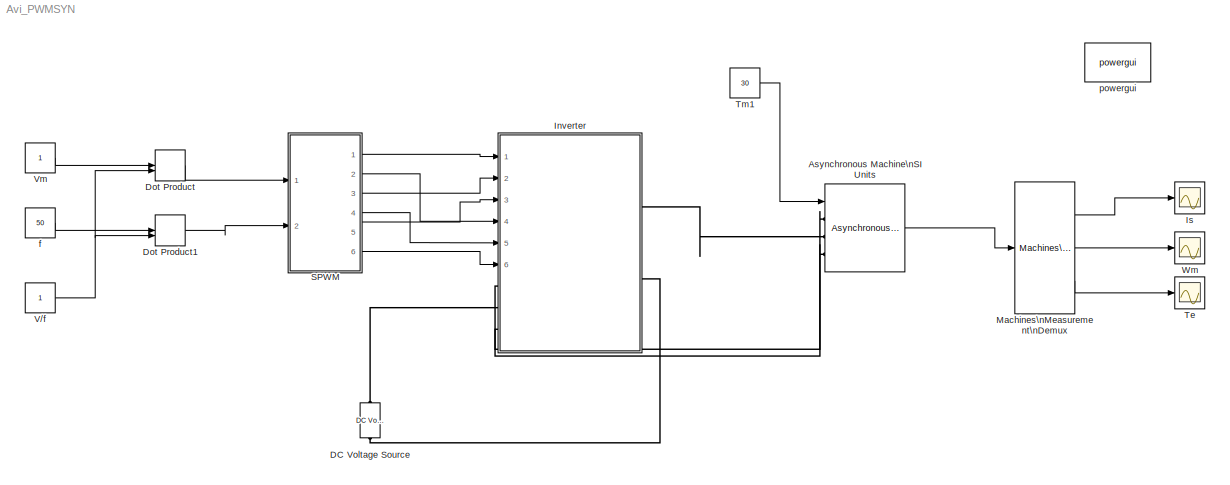
MODEL Avi_PWMSYN
KIND model
BLOCK [Reference] Asynchronous Machine\nSI Units  REF=powerlib/Machines/Asynchronous Machine\nSI Units
  AttributesFormatString = \\n
  DialogController = POWERSYS.PowerSysDialog
  FunctionWithSeparateData = off
  InitialConditions = [1 0 0 0 0 0 0 0]
  IterativeModel = Forward Euler
  Lm = .0631
  LoadFlowParameters = 1492000
  Mechanical = [ .089 0 2 ]
  MechanicalLoad = Torque Tm
  NominalParameters = [ 3746 220 50 ]
  PolePairs = 2
  Ports = [1, 1, 0, 0, 0, 3]
  PresetModel = No
  RTWMemSecDataConstants = Inherit from model
  RTWMemSecDataInternal = Inherit from model
  RTWMemSecDataParameters = Inherit from model
  RTWMemSecFuncExecute = Inherit from model
  RTWMemSecFuncInitTerm = Inherit from model
  ReferenceFrame = Stationary
  Rotor = [ .816 2e-3]
  RotorType = Squirrel-cage
  Saturation = [14.03593122, 27.81365428, 53.79336849, 72.68890987, 97.98006896, 148.6815601, 215.7428561, 302.9841135, 428.7778367 ; 230, 322, 414, 460, 506, 552, 598, 644, 690]
  ShowDetailedParameters = on
  ShowPortLabels = FromPortIcon
  SimulateSaturation = off
  SourceBlock = powerlib/Machines/Asynchronous Machine\nSI Units
  SourceType = Asynchronous Machine
  Stator = [.453 2e-3]
  SystemSampleTime = -1
  TsBlock = -1
  TsPowergui = 0
  Units = SI
BLOCK [Reference] DC Voltage Source  REF=powerlib/Electrical\nSources/DC Voltage Source
  Amplitude = 250
  DialogController = POWERSYS.PowerSysDialog
  FunctionWithSeparateData = off
  Measurements = None
  Ports = [0, 0, 0, 0, 0, 1, 1]
  RTWMemSecDataConstants = Inherit from model
  RTWMemSecDataInternal = Inherit from model
  RTWMemSecDataParameters = Inherit from model
  RTWMemSecFuncExecute = Inherit from model
  RTWMemSecFuncInitTerm = Inherit from model
  ShowPortLabels = FromPortIcon
  SourceBlock = powerlib/Electrical\nSources/DC Voltage Source
  SourceType = DC Voltage Source
  SystemSampleTime = -1
BLOCK [DotProduct] Dot Product
  OutDataType = fixdt(1, 16)
  OutDataTypeStr = Inherit: Inherit via internal rule
  OutScaling = 2^-10
  OutputDataTypeScalingMode = Inherit via internal rule
BLOCK [DotProduct] Dot Product1
  OutDataType = fixdt(1, 16)
  OutDataTypeStr = Inherit: Inherit via internal rule
  OutScaling = 2^-10
  OutputDataTypeScalingMode = Inherit via internal rule
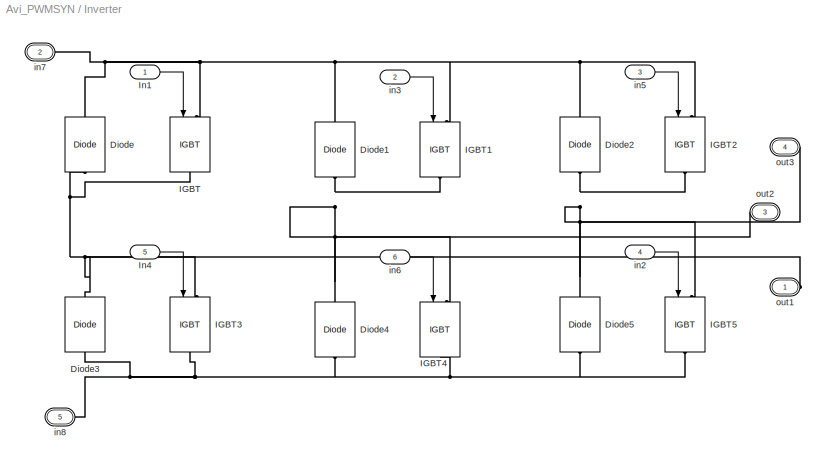
BLOCK [SubSystem] Inverter
  FunctionWithSeparateData = off
  MaskHideContents = off
  MinAlgLoopOccurrences = off
  Opaque = off
  Ports = [6, 0, 0, 0, 0, 3, 2]
  PropExecContextOutsideSubsystem = off
  RTWSystemCode = Auto
  RequestExecContextInheritance = off
BLOCK [Reference] Inverter/Diode  REF=powerlib/Power\nElectronics/Diode
  Cs = 250e-9
  DialogController = POWERSYS.PowerSysDialog
  FunctionWithSeparateData = off
  IC = 0
  Lon = 0
  Measurements = off
  Ports = [0, 0, 0, 0, 0, 1, 1]
  RTWMemSecDataConstants = Inherit from model
  RTWMemSecDataInternal = Inherit from model
  RTWMemSecDataParameters = Inherit from model
  RTWMemSecFuncExecute = Inherit from model
  RTWMemSecFuncInitTerm = Inherit from model
  Ron = 0.001
  Rs = 500
  ShowPortLabels = FromPortIcon
  SourceBlock = powerlib/Power\nElectronics/Diode
  SourceType = Diode
  SystemSampleTime = -1
  UseSnubber = off
  Vf = 0.8
BLOCK [Reference] Inverter/Diode1  REF=powerlib/Power\nElectronics/Diode
  Cs = 250e-9
  DialogController = POWERSYS.PowerSysDialog
  FunctionWithSeparateData = off
  IC = 0
  Lon = 0
  Measurements = off
  Ports = [0, 0, 0, 0, 0, 1, 1]
  RTWMemSecDataConstants = Inherit from model
  RTWMemSecDataInternal = Inherit from model
  RTWMemSecDataParameters = Inherit from model
  RTWMemSecFuncExecute = Inherit from model
  RTWMemSecFuncInitTerm = Inherit from model
  Ron = 0.001
  Rs = 500
  ShowPortLabels = FromPortIcon
  SourceBlock = powerlib/Power\nElectronics/Diode
  SourceType = Diode
  SystemSampleTime = -1
  UseSnubber = off
  Vf = 0.8
BLOCK [Reference] Inverter/Diode2  REF=powerlib/Power\nElectronics/Diode
  Cs = 250e-9
  DialogController = POWERSYS.PowerSysDialog
  FunctionWithSeparateData = off
  IC = 0
  Lon = 0
  Measurements = off
  Ports = [0, 0, 0, 0, 0, 1, 1]
  RTWMemSecDataConstants = Inherit from model
  RTWMemSecDataInternal = Inherit from model
  RTWMemSecDataParameters = Inherit from model
  RTWMemSecFuncExecute = Inherit from model
  RTWMemSecFuncInitTerm = Inherit from model
  Ron = 0.001
  Rs = 500
  ShowPortLabels = FromPortIcon
  SourceBlock = powerlib/Power\nElectronics/Diode
  SourceType = Diode
  SystemSampleTime = -1
  UseSnubber = off
  Vf = 0.8
BLOCK [Reference] Inverter/Diode3  REF=powerlib/Power\nElectronics/Diode
  Cs = 250e-9
  DialogController = POWERSYS.PowerSysDialog
  FunctionWithSeparateData = off
  IC = 0
  Lon = 0
  Measurements = off
  Ports = [0, 0, 0, 0, 0, 1, 1]
  RTWMemSecDataConstants = Inherit from model
  RTWMemSecDataInternal = Inherit from model
  RTWMemSecDataParameters = Inherit from model
  RTWMemSecFuncExecute = Inherit from model
  RTWMemSecFuncInitTerm = Inherit from model
  Ron = 0.001
  Rs = 500
  ShowPortLabels = FromPortIcon
  SourceBlock = powerlib/Power\nElectronics/Diode
  SourceType = Diode
  SystemSampleTime = -1
  UseSnubber = off
  Vf = 0.8
BLOCK [Reference] Inverter/Diode4  REF=powerlib/Power\nElectronics/Diode
  Cs = 250e-9
  DialogController = POWERSYS.PowerSysDialog
  FunctionWithSeparateData = off
  IC = 0
  Lon = 0
  Measurements = off
  Ports = [0, 0, 0, 0, 0, 1, 1]
  RTWMemSecDataConstants = Inherit from model
  RTWMemSecDataInternal = Inherit from model
  RTWMemSecDataParameters = Inherit from model
  RTWMemSecFuncExecute = Inherit from model
  RTWMemSecFuncInitTerm = Inherit from model
  Ron = 0.001
  Rs = 500
  ShowPortLabels = FromPortIcon
  SourceBlock = powerlib/Power\nElectronics/Diode
  SourceType = Diode
  SystemSampleTime = -1
  UseSnubber = off
  Vf = 0.8
BLOCK [Reference] Inverter/Diode5  REF=powerlib/Power\nElectronics/Diode
  Cs = 250e-9
  DialogController = POWERSYS.PowerSysDialog
  FunctionWithSeparateData = off
  IC = 0
  Lon = 0
  Measurements = off
  Ports = [0, 0, 0, 0, 0, 1, 1]
  RTWMemSecDataConstants = Inherit from model
  RTWMemSecDataInternal = Inherit from model
  RTWMemSecDataParameters = Inherit from model
  RTWMemSecFuncExecute = Inherit from model
  RTWMemSecFuncInitTerm = Inherit from model
  Ron = 0.001
  Rs = 500
  ShowPortLabels = FromPortIcon
  SourceBlock = powerlib/Power\nElectronics/Diode
  SourceType = Diode
  SystemSampleTime = -1
  UseSnubber = off
  Vf = 0.8
BLOCK [Reference] Inverter/IGBT  REF=powerlib/Power\nElectronics/IGBT
  Cs = inf
  DialogController = POWERSYS.PowerSysDialog
  FunctionWithSeparateData = off
  IC = 0
  Lon = 0
  Measurements = off
  Ports = [1, 0, 0, 0, 0, 1, 1]
  RTWMemSecDataConstants = Inherit from model
  RTWMemSecDataInternal = Inherit from model
  RTWMemSecDataParameters = Inherit from model
  RTWMemSecFuncExecute = Inherit from model
  RTWMemSecFuncInitTerm = Inherit from model
  Ron = 0.001
  Rs = 1e5
  ShowPortLabels = FromPortIcon
  SourceBlock = powerlib/Power\nElectronics/IGBT
  SourceType = IGBT
  SystemSampleTime = -1
  Tf = 1e-6
  Tt = 2e-6
  Vf = 1
BLOCK [Reference] Inverter/IGBT1  REF=powerlib/Power\nElectronics/IGBT
  Cs = inf
  DialogController = POWERSYS.PowerSysDialog
  FunctionWithSeparateData = off
  IC = 0
  Lon = 0
  Measurements = off
  Ports = [1, 0, 0, 0, 0, 1, 1]
  RTWMemSecDataConstants = Inherit from model
  RTWMemSecDataInternal = Inherit from model
  RTWMemSecDataParameters = Inherit from model
  RTWMemSecFuncExecute = Inherit from model
  RTWMemSecFuncInitTerm = Inherit from model
  Ron = 0.001
  Rs = 1e5
  ShowPortLabels = FromPortIcon
  SourceBlock = powerlib/Power\nElectronics/IGBT
  SourceType = IGBT
  SystemSampleTime = -1
  Tf = 1e-6
  Tt = 2e-6
  Vf = 1
BLOCK [Reference] Inverter/IGBT2  REF=powerlib/Power\nElectronics/IGBT
  Cs = inf
  DialogController = POWERSYS.PowerSysDialog
  FunctionWithSeparateData = off
  IC = 0
  Lon = 0
  Measurements = off
  Ports = [1, 0, 0, 0, 0, 1, 1]
  RTWMemSecDataConstants = Inherit from model
  RTWMemSecDataInternal = Inherit from model
  RTWMemSecDataParameters = Inherit from model
  RTWMemSecFuncExecute = Inherit from model
  RTWMemSecFuncInitTerm = Inherit from model
  Ron = 0.001
  Rs = 1e5
  ShowPortLabels = FromPortIcon
  SourceBlock = powerlib/Power\nElectronics/IGBT
  SourceType = IGBT
  SystemSampleTime = -1
  Tf = 1e-6
  Tt = 2e-6
  Vf = 1
BLOCK [Reference] Inverter/IGBT3  REF=powerlib/Power\nElectronics/IGBT
  Cs = inf
  DialogController = POWERSYS.PowerSysDialog
  FunctionWithSeparateData = off
  IC = 0
  Lon = 0
  Measurements = off
  Ports = [1, 0, 0, 0, 0, 1, 1]
  RTWMemSecDataConstants = Inherit from model
  RTWMemSecDataInternal = Inherit from model
  RTWMemSecDataParameters = Inherit from model
  RTWMemSecFuncExecute = Inherit from model
  RTWMemSecFuncInitTerm = Inherit from model
  Ron = 0.001
  Rs = 1e5
  ShowPortLabels = FromPortIcon
  SourceBlock = powerlib/Power\nElectronics/IGBT
  SourceType = IGBT
  SystemSampleTime = -1
  Tf = 1e-6
  Tt = 2e-6
  Vf = 1
BLOCK [Reference] Inverter/IGBT4  REF=powerlib/Power\nElectronics/IGBT
  Cs = inf
  DialogController = POWERSYS.PowerSysDialog
  FunctionWithSeparateData = off
  IC = 0
  Lon = 0
  Measurements = off
  Ports = [1, 0, 0, 0, 0, 1, 1]
  RTWMemSecDataConstants = Inherit from model
  RTWMemSecDataInternal = Inherit from model
  RTWMemSecDataParameters = Inherit from model
  RTWMemSecFuncExecute = Inherit from model
  RTWMemSecFuncInitTerm = Inherit from model
  Ron = 0.001
  Rs = 1e5
  ShowPortLabels = FromPortIcon
  SourceBlock = powerlib/Power\nElectronics/IGBT
  SourceType = IGBT
  SystemSampleTime = -1
  Tf = 1e-6
  Tt = 2e-6
  Vf = 1
BLOCK [Reference] Inverter/IGBT5  REF=powerlib/Power\nElectronics/IGBT
  Cs = inf
  DialogController = POWERSYS.PowerSysDialog
  FunctionWithSeparateData = off
  IC = 0
  Lon = 0
  Measurements = off
  Ports = [1, 0, 0, 0, 0, 1, 1]
  RTWMemSecDataConstants = Inherit from model
  RTWMemSecDataInternal = Inherit from model
  RTWMemSecDataParameters = Inherit from model
  RTWMemSecFuncExecute = Inherit from model
  RTWMemSecFuncInitTerm = Inherit from model
  Ron = 0.001
  Rs = 1e5
  ShowPortLabels = FromPortIcon
  SourceBlock = powerlib/Power\nElectronics/IGBT
  SourceType = IGBT
  SystemSampleTime = -1
  Tf = 1e-6
  Tt = 2e-6
  Vf = 1
BLOCK [Inport] Inverter/In1
  IconDisplay = Port number
  OutDataType = fixdt(1, 16)
  OutScaling = 2^0
BLOCK [Inport] Inverter/In4
  IconDisplay = Port number
  OutDataType = fixdt(1, 16)
  OutScaling = 2^0
  Port = 5
BLOCK [Inport] Inverter/in2
  IconDisplay = Port number
  OutDataType = fixdt(1, 16)
  OutScaling = 2^0
  Port = 4
BLOCK [Inport] Inverter/in3
  IconDisplay = Port number
  OutDataType = fixdt(1, 16)
  OutScaling = 2^0
  Port = 2
BLOCK [Inport] Inverter/in5
  IconDisplay = Port number
  OutDataType = fixdt(1, 16)
  OutScaling = 2^0
  Port = 3
BLOCK [Inport] Inverter/in6
  IconDisplay = Port number
  OutDataType = fixdt(1, 16)
  OutScaling = 2^0
  Port = 6
BLOCK [PMIOPort] Inverter/in7
  Port = 2
  Side = Left
  Tag = PMCPort
BLOCK [PMIOPort] Inverter/in8
  Port = 5
  Side = Right
  Tag = PMCPort
BLOCK [PMIOPort] Inverter/out1
  Port = 1
  Side = Left
  Tag = PMCPort
BLOCK [PMIOPort] Inverter/out2
  Port = 3
  Side = Right
  Tag = PMCPort
BLOCK [PMIOPort] Inverter/out3
  Port = 4
  Side = Left
  Tag = PMCPort
BLOCK [Scope] Is
  DataFormat = StructureWithTime
  Floating = off
  NumInputPorts = 1
  Ports = [1]
  SampleTime = 0
  SaveName = ScopeData4
  YMax = 40
  YMin = -40
BLOCK [Reference] Machines\nMeasurement\nDemux  REF=powerlib/Machines/Machines\nMeasurement\nDemux
  DialogController = POWERSYS.PowerSysDialog
  FunctionWithSeparateData = off
  Ports = [1, 3]
  RTWMemSecDataConstants = Inherit from model
  RTWMemSecDataInternal = Inherit from model
  RTWMemSecDataParameters = Inherit from model
  RTWMemSecFuncExecute = Inherit from model
  RTWMemSecFuncInitTerm = Inherit from model
  ShowPortLabels = FromPortIcon
  SourceBlock = powerlib/Machines/Machines\nMeasurement\nDemux
  SourceType = Machine measurements
  SystemSampleTime = -1
  asm1 = off
  asm10 = on
  asm11 = off
  asm2 = off
  asm3 = off
  asm4 = off
  asm5 = on
  asm6 = off
  asm7 = off
  asm8 = off
  asm9 = on
  lastType = 1
  machType = Asynchronous
  pmsm1 = on
  pmsm2 = on
  pmsm3 = on
  pmsm4 = off
  pmsm5 = on
  pmsm6 = on
  pmsm7 = on
  sm1 = on
  sm10 = off
  sm11 = off
  sm115 = on
  sm12 = off
  sm13 = off
  sm14 = off
  sm2 = off
  sm3 = off
  sm4 = off
  sm5 = off
  sm6 = off
  sm7 = off
  sm8 = on
  sm9 = off
  ssm1 = on
  ssm2 = on
  ssm3 = on
  ssm4 = on
  ssm5 = on
  ssm6 = on
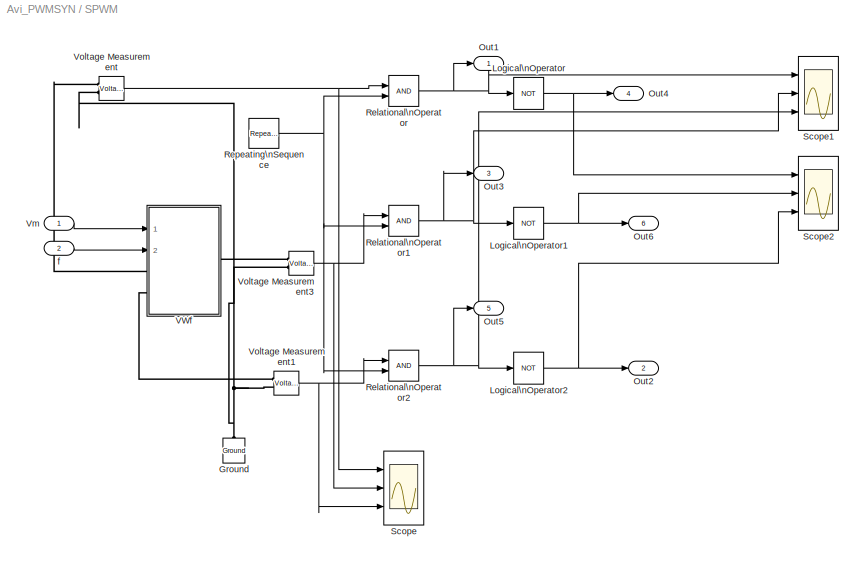
BLOCK [SubSystem] SPWM
  FunctionWithSeparateData = off
  MaskHideContents = off
  MinAlgLoopOccurrences = off
  Opaque = off
  Ports = [2, 6]
  PropExecContextOutsideSubsystem = off
  RTWSystemCode = Auto
  RequestExecContextInheritance = off
BLOCK [Reference] SPWM/Ground  REF=powerlib/Elements/Ground
  DialogController = POWERSYS.PowerSysDialog
  LConnTagsString = a
  LeftPortType = p1
  PhysicalDomain = powersysdomain
  Ports = [0, 0, 0, 0, 0, 1]
  RightPortType = p1
  SourceBlock = powerlib/Elements/Ground
  SourceType = Ground
  SubClassName = unknown
BLOCK [Logic] SPWM/Logical\nOperator
  AllPortsSameDT = off
  LogicDataType = fixdt(0, 8)
  Operator = NOT
  OutDataTypeMode = boolean
  OutDataTypeStr = boolean
  Ports = [1, 1]
BLOCK [Logic] SPWM/Logical\nOperator1
  AllPortsSameDT = off
  LogicDataType = fixdt(0, 8)
  Operator = NOT
  OutDataTypeMode = boolean
  OutDataTypeStr = boolean
  Ports = [1, 1]
BLOCK [Logic] SPWM/Logical\nOperator2
  AllPortsSameDT = off
  LogicDataType = fixdt(0, 8)
  Operator = NOT
  OutDataTypeMode = boolean
  OutDataTypeStr = boolean
  Ports = [1, 1]
BLOCK [Outport] SPWM/Out1
  IconDisplay = Port number
  OutDataType = fixdt(1, 16)
  OutScaling = 2^0
BLOCK [Outport] SPWM/Out2
  IconDisplay = Port number
  OutDataType = fixdt(1, 16)
  OutScaling = 2^0
  Port = 2
BLOCK [Outport] SPWM/Out3
  IconDisplay = Port number
  OutDataType = fixdt(1, 16)
  OutScaling = 2^0
  Port = 3
BLOCK [Outport] SPWM/Out4
  IconDisplay = Port number
  OutDataType = fixdt(1, 16)
  OutScaling = 2^0
  Port = 4
BLOCK [Outport] SPWM/Out5
  IconDisplay = Port number
  OutDataType = fixdt(1, 16)
  OutScaling = 2^0
  Port = 5
BLOCK [Outport] SPWM/Out6
  IconDisplay = Port number
  OutDataType = fixdt(1, 16)
  OutScaling = 2^0
  Port = 6
BLOCK [RelationalOperator] SPWM/Relational\nOperator
  InputSameDT = off
  LogicDataType = fixdt(0, 8)
  LogicOutDataTypeMode = boolean
  OutDataTypeStr = boolean
BLOCK [RelationalOperator] SPWM/Relational\nOperator1
  InputSameDT = off
  LogicDataType = fixdt(0, 8)
  LogicOutDataTypeMode = boolean
  OutDataTypeStr = boolean
BLOCK [RelationalOperator] SPWM/Relational\nOperator2
  InputSameDT = off
  LogicDataType = fixdt(0, 8)
  LogicOutDataTypeMode = boolean
  OutDataTypeStr = boolean
BLOCK [Reference] SPWM/Repeating\nSequence  REF=simulink/Sources/Repeating\nSequence
  FunctionWithSeparateData = off
  Ports = [0, 1]
  RTWMemSecDataConstants = Inherit from model
  RTWMemSecDataInternal = Inherit from model
  RTWMemSecDataParameters = Inherit from model
  RTWMemSecFuncExecute = Inherit from model
  RTWMemSecFuncInitTerm = Inherit from model
  ShowPortLabels = FromPortIcon
  SourceBlock = simulink/Sources/Repeating\nSequence
  SourceType = Repeating table
  SystemSampleTime = -1
  rep_seq_t = [0 .0005 .0015 .002]
  rep_seq_y = [0 1 -1 0]
BLOCK [Scope] SPWM/Scope
  DataFormat = StructureWithTime
  Floating = off
  LimitDataPoints = off
  NumInputPorts = 3
  Ports = [3]
  SampleTime = 0
  SaveName = ScopeData1
  YMax = 5~5~5
  YMin = -5~-5~-5
BLOCK [Scope] SPWM/Scope1
  DataFormat = StructureWithTime
  Floating = off
  LimitDataPoints = off
  NumInputPorts = 3
  Ports = [3]
  SampleTime = 0
  SaveName = ScopeData2
  YMax = 5~5~5
  YMin = -5~-5~-5
BLOCK [Scope] SPWM/Scope2
  DataFormat = StructureWithTime
  Floating = off
  LimitDataPoints = off
  NumInputPorts = 3
  Ports = [3]
  SampleTime = 0
  SaveName = ScopeData3
  YMax = 5~5~5
  YMin = -5~-5~-5
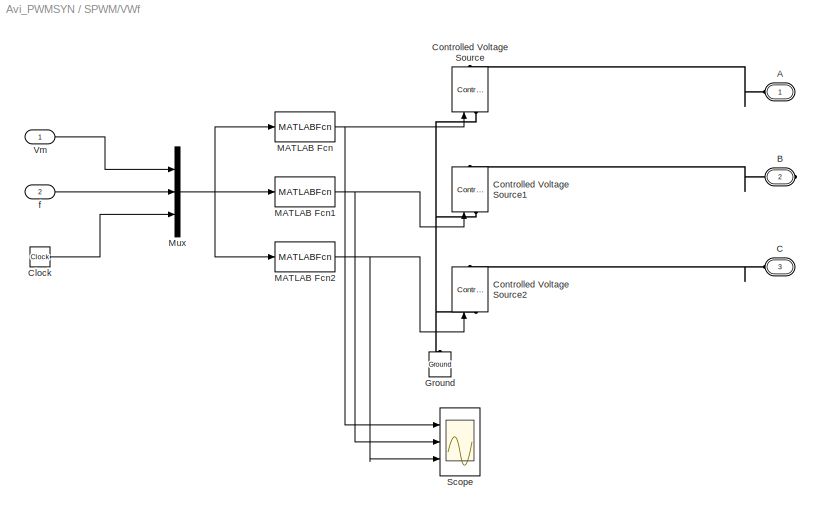
BLOCK [SubSystem] SPWM/VWf
  FunctionWithSeparateData = off
  MaskHideContents = off
  MinAlgLoopOccurrences = off
  Opaque = off
  Ports = [2, 0, 0, 0, 0, 2, 1]
  PropExecContextOutsideSubsystem = off
  RTWSystemCode = Auto
  RequestExecContextInheritance = off
BLOCK [PMIOPort] SPWM/VWf/A
  Port = 1
  Side = Left
  Tag = PMCPort
BLOCK [PMIOPort] SPWM/VWf/B
  Port = 2
  Side = Right
  Tag = PMCPort
BLOCK [PMIOPort] SPWM/VWf/C
  Port = 3
  Side = Left
  Tag = PMCPort
BLOCK [Clock] SPWM/VWf/Clock
  Decimation = 10
BLOCK [Reference] SPWM/VWf/Controlled Voltage Source  REF=powerlib/Electrical\nSources/Controlled Voltage Source
  Amplitude = 0
  DialogController = POWERSYS.PowerSysDialog
  Frequency = 0
  FunctionWithSeparateData = off
  Initialize = on
  Measurements = None
  Phase = 0
  Ports = [1, 0, 0, 0, 0, 1, 1]
  RTWMemSecDataConstants = Inherit from model
  RTWMemSecDataInternal = Inherit from model
  RTWMemSecDataParameters = Inherit from model
  RTWMemSecFuncExecute = Inherit from model
  RTWMemSecFuncInitTerm = Inherit from model
  ShowPortLabels = FromPortIcon
  SourceBlock = powerlib/Electrical\nSources/Controlled Voltage Source
  SourceType = Controlled Voltage Source
  Source_Type = AC
  SystemSampleTime = -1
BLOCK [Reference] SPWM/VWf/Controlled Voltage Source1  REF=powerlib/Electrical\nSources/Controlled Voltage Source
  Amplitude = 0
  DialogController = POWERSYS.PowerSysDialog
  Frequency = 0
  FunctionWithSeparateData = off
  Initialize = on
  Measurements = None
  Phase = 0
  Ports = [1, 0, 0, 0, 0, 1, 1]
  RTWMemSecDataConstants = Inherit from model
  RTWMemSecDataInternal = Inherit from model
  RTWMemSecDataParameters = Inherit from model
  RTWMemSecFuncExecute = Inherit from model
  RTWMemSecFuncInitTerm = Inherit from model
  ShowPortLabels = FromPortIcon
  SourceBlock = powerlib/Electrical\nSources/Controlled Voltage Source
  SourceType = Controlled Voltage Source
  Source_Type = AC
  SystemSampleTime = -1
BLOCK [Reference] SPWM/VWf/Controlled Voltage Source2  REF=powerlib/Electrical\nSources/Controlled Voltage Source
  Amplitude = 0
  DialogController = POWERSYS.PowerSysDialog
  Frequency = 0
  FunctionWithSeparateData = off
  Initialize = on
  Measurements = None
  Phase = 0
  Ports = [1, 0, 0, 0, 0, 1, 1]
  RTWMemSecDataConstants = Inherit from model
  RTWMemSecDataInternal = Inherit from model
  RTWMemSecDataParameters = Inherit from model
  RTWMemSecFuncExecute = Inherit from model
  RTWMemSecFuncInitTerm = Inherit from model
  ShowPortLabels = FromPortIcon
  SourceBlock = powerlib/Electrical\nSources/Controlled Voltage Source
  SourceType = Controlled Voltage Source
  Source_Type = AC
  SystemSampleTime = -1
BLOCK [Reference] SPWM/VWf/Ground  REF=powerlib/Elements/Ground
  DialogController = POWERSYS.PowerSysDialog
  LConnTagsString = a
  LeftPortType = p1
  PhysicalDomain = powersysdomain
  Ports = [0, 0, 0, 0, 0, 1]
  RightPortType = p1
  SourceBlock = powerlib/Elements/Ground
  SourceType = Ground
  SubClassName = unknown
BLOCK [MATLABFcn] SPWM/VWf/MATLAB Fcn
  MATLABFcn = u(1)*sin(6.28*u(2)*u(3))
  Ports = [1, 1]
BLOCK [MATLABFcn] SPWM/VWf/MATLAB Fcn1
  MATLABFcn = u(1)*sin((6.28*u(2)*u(3))-2.094)
  Ports = [1, 1]
BLOCK [MATLABFcn] SPWM/VWf/MATLAB Fcn2
  MATLABFcn = u(1)*sin((6.28*u(2)*u(3))+2.094)
  Ports = [1, 1]
BLOCK [Mux] SPWM/VWf/Mux
  DisplayOption = bar
  Inputs = 3
  Ports = [3, 1]
BLOCK [Scope] SPWM/VWf/Scope
  DataFormat = StructureWithTime
  Floating = off
  LimitDataPoints = off
  NumInputPorts = 3
  Ports = [3]
  SampleTime = 0
  TimeRange = 0.25
  YMax = 5~5~5
  YMin = -5~-5~-5
BLOCK [Inport] SPWM/VWf/Vm
  IconDisplay = Port number
  OutDataType = fixdt(1, 16)
  OutScaling = 2^0
BLOCK [Inport] SPWM/VWf/f
  IconDisplay = Port number
  OutDataType = fixdt(1, 16)
  OutScaling = 2^0
  Port = 2
BLOCK [Inport] SPWM/Vm
  IconDisplay = Port number
  OutDataType = fixdt(1, 16)
  OutScaling = 2^0
BLOCK [Reference] SPWM/Voltage Measurement  REF=powerlib/Measurements/Voltage Measurement
  DialogController = POWERSYS.PowerSysDialog
  FunctionWithSeparateData = off
  OutputType = Complex
  PSBequivalent = 0
  PhasorSimulation = off
  Ports = [0, 1, 0, 0, 0, 2]
  RTWMemSecDataConstants = Inherit from model
  RTWMemSecDataInternal = Inherit from model
  RTWMemSecDataParameters = Inherit from model
  RTWMemSecFuncExecute = Inherit from model
  RTWMemSecFuncInitTerm = Inherit from model
  ShowPortLabels = FromPortIcon
  SourceBlock = powerlib/Measurements/Voltage Measurement
  SourceType = Voltage Measurement
  SystemSampleTime = -1
BLOCK [Reference] SPWM/Voltage Measurement1  REF=powerlib/Measurements/Voltage Measurement
  DialogController = POWERSYS.PowerSysDialog
  FunctionWithSeparateData = off
  OutputType = Complex
  PSBequivalent = 0
  PhasorSimulation = off
  Ports = [0, 1, 0, 0, 0, 2]
  RTWMemSecDataConstants = Inherit from model
  RTWMemSecDataInternal = Inherit from model
  RTWMemSecDataParameters = Inherit from model
  RTWMemSecFuncExecute = Inherit from model
  RTWMemSecFuncInitTerm = Inherit from model
  ShowPortLabels = FromPortIcon
  SourceBlock = powerlib/Measurements/Voltage Measurement
  SourceType = Voltage Measurement
  SystemSampleTime = -1
BLOCK [Reference] SPWM/Voltage Measurement3  REF=powerlib/Measurements/Voltage Measurement
  DialogController = POWERSYS.PowerSysDialog
  FunctionWithSeparateData = off
  OutputType = Complex
  PSBequivalent = 0
  PhasorSimulation = off
  Ports = [0, 1, 0, 0, 0, 2]
  RTWMemSecDataConstants = Inherit from model
  RTWMemSecDataInternal = Inherit from model
  RTWMemSecDataParameters = Inherit from model
  RTWMemSecFuncExecute = Inherit from model
  RTWMemSecFuncInitTerm = Inherit from model
  ShowPortLabels = FromPortIcon
  SourceBlock = powerlib/Measurements/Voltage Measurement
  SourceType = Voltage Measurement
  SystemSampleTime = -1
BLOCK [Inport] SPWM/f
  IconDisplay = Port number
  OutDataType = fixdt(1, 16)
  OutScaling = 2^0
  Port = 2
BLOCK [Scope] Te
  DataFormat = StructureWithTime
  Floating = off
  NumInputPorts = 1
  Ports = [1]
  SampleTime = 0
  SaveName = ScopeData6
  YMax = 100
  YMin = 10
BLOCK [Constant] Tm1
  OutDataType = fixdt(1, 16)
  OutScaling = 2^0
  Value = 30
BLOCK [Constant] V//f
  OutDataType = fixdt(1, 16)
  OutScaling = 2^0
BLOCK [Constant] Vm
  OutDataType = fixdt(1, 16)
  OutScaling = 2^0
BLOCK [Scope] Wm
  DataFormat = StructureWithTime
  Floating = off
  NumInputPorts = 1
  Ports = [1]
  SampleTime = 0
  SaveName = ScopeData5
  YMax = 20
  YMin = 0
BLOCK [Constant] f
  OutDataType = fixdt(1, 16)
  OutScaling = 2^0
  Value = 50
BLOCK [Reference] powergui  REF=powerlib/powergui
  DisableRonSwitches = off
  DisableSnubberDevices = off
  DisableVfSwitches = off
  DisplayEquations = off
  DisplayStyle = 1
  EnableUseOfTLC = off
  Frange = [0:2:500]
  FreqAxis = off
  FunctionMessages = off
  FunctionWithSeparateData = off
  HookPort = off
  Interpol = off
  MaxFrequency = 1000
  Ports = []
  Priority = 1
  RTWMemSecDataConstants = Inherit from model
  RTWMemSecDataInternal = Inherit from model
  RTWMemSecDataParameters = Inherit from model
  RTWMemSecFuncExecute = Inherit from model
  RTWMemSecFuncInitTerm = Inherit from model
  RestoreLinks = warning
  RmsSteady = 1
  SPID = off
  SampleTime = 50e-6
  ShowGrid = off
  ShowPortLabels = FromPortIcon
  SourceBlock = powerlib/powergui
  SourceType = PSB option menu block
  StartTime = 0.0
  SwTol = 0
  SystemSampleTime = -1
  Ts = 0
  UserDataPersistent = on
  Xlog = on
  Ylog = off
  ZoomFFT = on
  cycles = 1
  display = off
  echomessages = off
  frequency = 60
  frequencyindice = 0
  frequencyindicesteady = 1
  fundamental = 60
  methode = off
  save = off
  variable = ZData
  x0status = blocks
LINE Asynchronous Machine\nSI Units:1 -> Machines\nMeasurement\nDemux:1
LINE Dot Product1:1 -> SPWM:2
LINE Dot Product:1 -> SPWM:1
LINE Inverter/In1:1 -> Inverter/IGBT:1
LINE Inverter/In4:1 -> Inverter/IGBT3:1
LINE Inverter/in2:1 -> Inverter/IGBT5:1
LINE Inverter/in3:1 -> Inverter/IGBT1:1
LINE Inverter/in5:1 -> Inverter/IGBT2:1
LINE Inverter/in6:1 -> Inverter/IGBT4:1
LINE Machines\nMeasurement\nDemux:1 -> Is:1
LINE Machines\nMeasurement\nDemux:2 -> Wm:1
LINE Machines\nMeasurement\nDemux:3 -> Te:1
NET SPWM/Logical\nOperator1:1 -> SPWM/Out6:1, SPWM/Scope2:2
NET SPWM/Logical\nOperator2:1 -> SPWM/Out2:1, SPWM/Scope2:3
NET SPWM/Logical\nOperator:1 -> SPWM/Out4:1, SPWM/Scope2:1
NET SPWM/Relational\nOperator1:1 -> SPWM/Logical\nOperator1:1, SPWM/Out3:1, SPWM/Scope1:2
NET SPWM/Relational\nOperator2:1 -> SPWM/Logical\nOperator2:1, SPWM/Out5:1, SPWM/Scope1:3
NET SPWM/Relational\nOperator:1 -> SPWM/Logical\nOperator:1, SPWM/Out1:1, SPWM/Scope1:1
NET SPWM/Repeating\nSequence:1 -> SPWM/Relational\nOperator1:2, SPWM/Relational\nOperator2:2, SPWM/Relational\nOperator:2
LINE SPWM/VWf/Clock:1 -> SPWM/VWf/Mux:3
NET SPWM/VWf/MATLAB Fcn1:1 -> SPWM/VWf/Controlled Voltage Source1:1, SPWM/VWf/Scope:2
NET SPWM/VWf/MATLAB Fcn2:1 -> SPWM/VWf/Controlled Voltage Source2:1, SPWM/VWf/Scope:3
NET SPWM/VWf/MATLAB Fcn:1 -> SPWM/VWf/Controlled Voltage Source:1, SPWM/VWf/Scope:1
NET SPWM/VWf/Mux:1 -> SPWM/VWf/MATLAB Fcn1:1, SPWM/VWf/MATLAB Fcn2:1, SPWM/VWf/MATLAB Fcn:1
LINE SPWM/VWf/Vm:1 -> SPWM/VWf/Mux:1
LINE SPWM/VWf/f:1 -> SPWM/VWf/Mux:2
LINE SPWM/Vm:1 -> SPWM/VWf:1
NET SPWM/Voltage Measurement1:1 -> SPWM/Relational\nOperator2:1, SPWM/Scope:3
NET SPWM/Voltage Measurement3:1 -> SPWM/Relational\nOperator1:1, SPWM/Scope:2
NET SPWM/Voltage Measurement:1 -> SPWM/Relational\nOperator:1, SPWM/Scope:1
LINE SPWM/f:1 -> SPWM/VWf:2
LINE SPWM:1 -> Inverter:1
LINE SPWM:2 -> Inverter:4
LINE SPWM:3 -> Inverter:2
LINE SPWM:4 -> Inverter:5
LINE SPWM:5 -> Inverter:3
LINE SPWM:6 -> Inverter:6
LINE Tm1:1 -> Asynchronous Machine\nSI Units:1
NET V//f:1 -> Dot Product1:2, Dot Product:2
LINE Vm:1 -> Dot Product:1
LINE f:1 -> Dot Product1:1
PLINE Asynchronous Machine\nSI Units:LConn1 -- Inverter:LConn1
PLINE Asynchronous Machine\nSI Units:LConn2 -- Inverter:RConn1
PLINE Asynchronous Machine\nSI Units:LConn3 -- Inverter:LConn3
PLINE DC Voltage Source:LConn1 -- Inverter:RConn2
PLINE DC Voltage Source:RConn1 -- Inverter:LConn2
PNET net1: Inverter/Diode1:LConn1 -- Inverter/Diode4:RConn1 -- Inverter/IGBT1:RConn1 -- Inverter/IGBT4:LConn1 -- Inverter/out2:RConn1
PNET net2: Inverter/Diode1:RConn1 -- Inverter/Diode2:RConn1 -- Inverter/Diode:RConn1 -- Inverter/IGBT1:LConn1 -- Inverter/IGBT2:LConn1 -- Inverter/IGBT:LConn1 -- Inverter/in7:RConn1
PNET net3: Inverter/Diode2:LConn1 -- Inverter/Diode5:RConn1 -- Inverter/IGBT2:RConn1 -- Inverter/IGBT5:LConn1 -- Inverter/out3:RConn1
PNET net4: Inverter/Diode3:LConn1 -- Inverter/Diode4:LConn1 -- Inverter/Diode5:LConn1 -- Inverter/IGBT3:RConn1 -- Inverter/IGBT4:RConn1 -- Inverter/IGBT5:RConn1 -- Inverter/in8:RConn1
PNET net5: Inverter/Diode3:RConn1 -- Inverter/Diode:LConn1 -- Inverter/IGBT3:LConn1 -- Inverter/IGBT:RConn1 -- Inverter/out1:RConn1
PNET net6: SPWM/Ground:LConn1 -- SPWM/Voltage Measurement1:LConn2 -- SPWM/Voltage Measurement3:LConn2 -- SPWM/Voltage Measurement:LConn2
PLINE SPWM/VWf/A:RConn1 -- SPWM/VWf/Controlled Voltage Source:RConn1
PLINE SPWM/VWf/B:RConn1 -- SPWM/VWf/Controlled Voltage Source1:RConn1
PLINE SPWM/VWf/C:RConn1 -- SPWM/VWf/Controlled Voltage Source2:RConn1
PNET net7: SPWM/VWf/Controlled Voltage Source1:LConn1 -- SPWM/VWf/Controlled Voltage Source2:LConn1 -- SPWM/VWf/Controlled Voltage Source:LConn1 -- SPWM/VWf/Ground:LConn1
PLINE SPWM/VWf:LConn1 -- SPWM/Voltage Measurement:LConn1
PLINE SPWM/VWf:LConn2 -- SPWM/Voltage Measurement1:LConn1
PLINE SPWM/VWf:RConn1 -- SPWM/Voltage Measurement3:LConn1
note: NET lines group one-source signal fan-out (src -> all destinations, sorted); 1:1 wires keep LINE; PNET lines group multi-terminal physical nets as a canonical sorted terminal list (undirected conserving connections); 2-terminal nets keep the pairwise PLINE form
